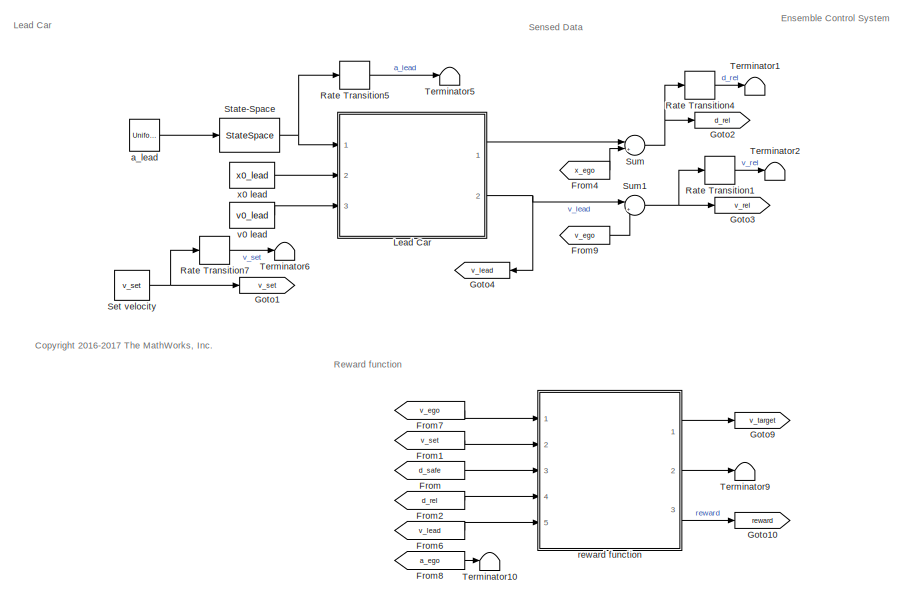
[diagram: root canvas - part 1/2, left side, full height]
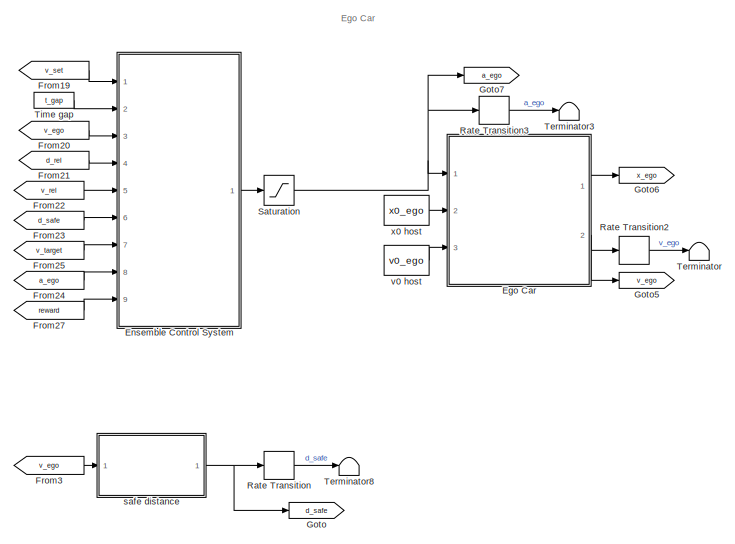
[diagram: root canvas - part 2/2, right side, full height]
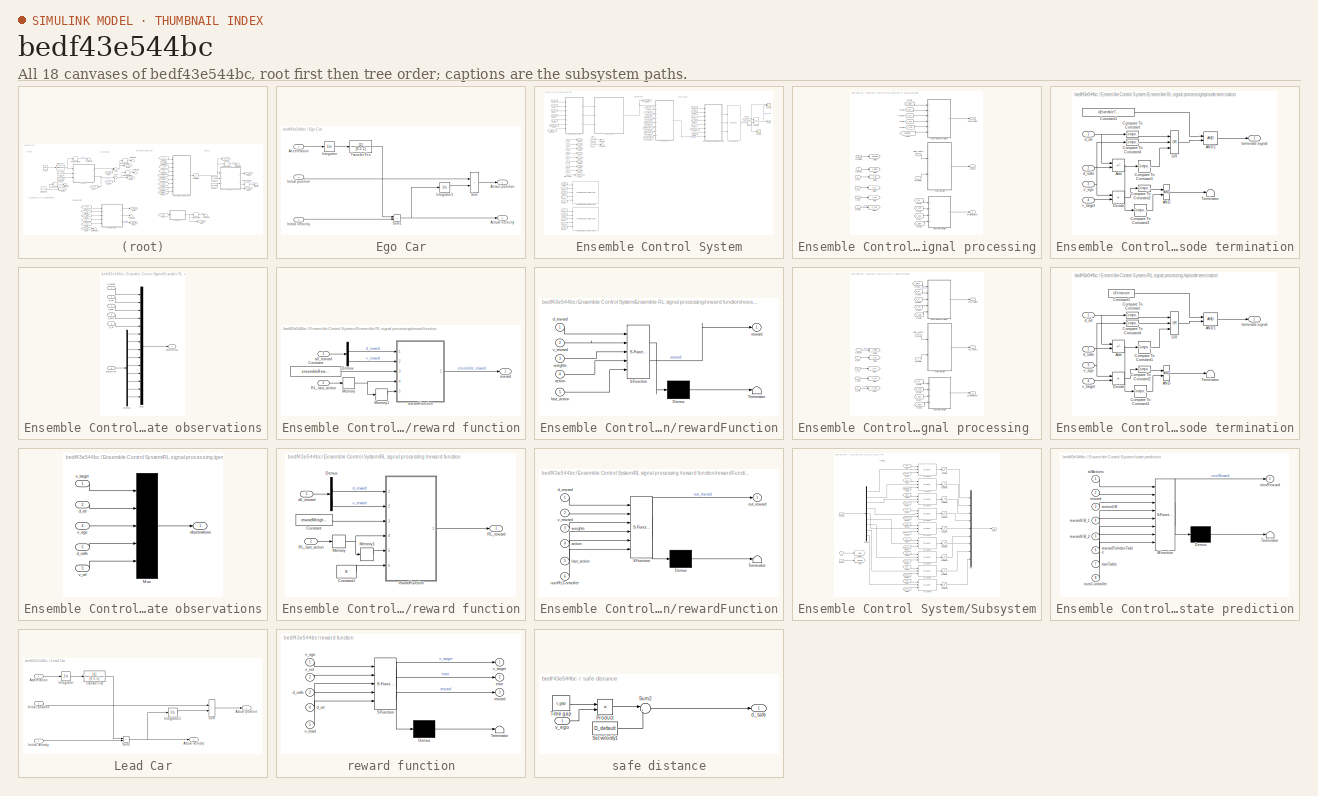
[diagram: thumbnail index - all 18 canvases of the model, root first then tree order]
MODEL slx_bedf43e544bc
KIND model
CONFIG AbsTol = auto
CONFIG EnableMultiTasking = off
CONFIG FixedStep = Ts
CONFIG MaxStep = auto
CONFIG MinStep = auto
CONFIG RelTol = 1e-3
CONFIG SampleTimeConstraint = Unconstrained
CONFIG SolverName = FixedStepAuto
CONFIG StartFcn = a_lead_seed = simCount;\nsimCount = simCount + 1;
CONFIG StartTime = 0.0
CONFIG StopTime = T
BLOCK [SubSystem] Ego Car
  Ports = [3, 2]
  RequestExecContextInheritance = off
BLOCK [Inport] Ego Car/Acceleration
BLOCK [Outport] Ego Car/Actaul position
  VectorParamsAs1DForOutWhenUnconnected = off
BLOCK [Outport] Ego Car/Actual velocity
  Port = 2
  VectorParamsAs1DForOutWhenUnconnected = off
BLOCK [Inport] Ego Car/Initial position
  Port = 2
BLOCK [Inport] Ego Car/Initial velocity
  Port = 3
BLOCK [Integrator] Ego Car/Integrator
  Ports = [1, 1]
BLOCK [Integrator] Ego Car/Integrator1
  Ports = [1, 1]
BLOCK [Sum] Ego Car/Sum
  IconShape = rectangular
  Ports = [2, 1]
BLOCK [Sum] Ego Car/Sum1
  IconShape = rectangular
  Ports = [2, 1]
BLOCK [TransferFcn] Ego Car/Transfer Fcn
  Denominator = [0.5 1]
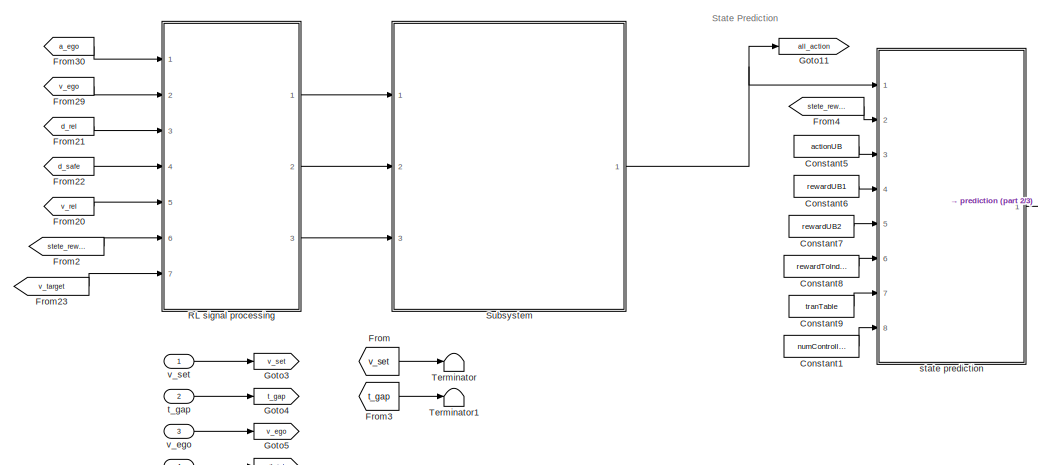
[diagram: Ensemble Control System - part 1/3, top left region]
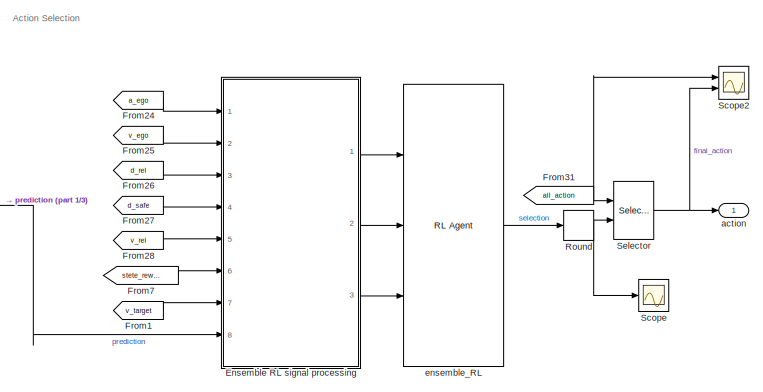
[diagram: Ensemble Control System - part 2/3, top right region]
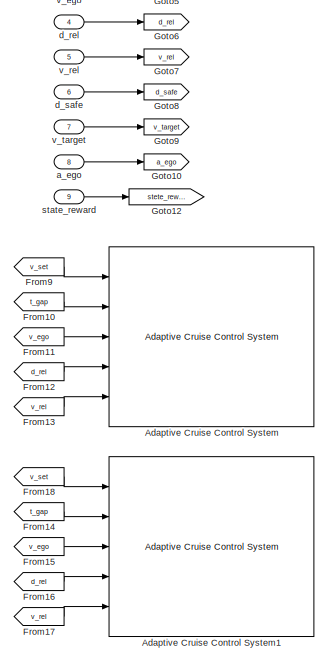
[diagram: Ensemble Control System - part 3/3, bottom left region]
BLOCK [SubSystem] Ensemble Control System
  Ports = [9, 1]
  RequestExecContextInheritance = off
BLOCK [Reference] Ensemble Control System/Adaptive Cruise Control System  REF=mpcadaslib/Adaptive Cruise Control System
  Commented = on
  Ports = [5, 1]
  SourceBlock = mpcadaslib/Adaptive Cruise Control System
  SourceProductBaseCode = MP
  SourceType = Adaptive cruise control (ACC) system
BLOCK [Reference] Ensemble Control System/Adaptive Cruise Control System1  REF=mpcadaslib/Adaptive Cruise Control System
  Commented = on
  Ports = [5, 1]
  SourceBlock = mpcadaslib/Adaptive Cruise Control System
  SourceProductBaseCode = MP
  SourceType = Adaptive cruise control (ACC) system
BLOCK [Constant] Ensemble Control System/Constant1
  Value = numController
BLOCK [Constant] Ensemble Control System/Constant5
  Value = actionUB
BLOCK [Constant] Ensemble Control System/Constant6
  Value = rewardUB1
BLOCK [Constant] Ensemble Control System/Constant7
  Value = rewardUB2
BLOCK [Constant] Ensemble Control System/Constant8
  Value = rewardToIndex
BLOCK [Constant] Ensemble Control System/Constant9
  Value = tranTable
BLOCK [SubSystem] Ensemble Control System/Ensemble RL signal processing
  Ports = [8, 3]
  RequestExecContextInheritance = off
BLOCK [From] Ensemble Control System/Ensemble RL signal processing/From
  GotoTag = v_ego
BLOCK [From] Ensemble Control System/Ensemble RL signal processing/From1
  GotoTag = v_target
BLOCK [From] Ensemble Control System/Ensemble RL signal processing/From10
  GotoTag = v_rel
BLOCK [From] Ensemble Control System/Ensemble RL signal processing/From2
  GotoTag = v_ego
BLOCK [From] Ensemble Control System/Ensemble RL signal processing/From3
  GotoTag = d_rel
BLOCK [From] Ensemble Control System/Ensemble RL signal processing/From4
  GotoTag = v_target
BLOCK [From] Ensemble Control System/Ensemble RL signal processing/From5
  GotoTag = d_rel
BLOCK [From] Ensemble Control System/Ensemble RL signal processing/From6
  GotoTag = d_safe
BLOCK [From] Ensemble Control System/Ensemble RL signal processing/From7
  GotoTag = prediction
BLOCK [From] Ensemble Control System/Ensemble RL signal processing/From8
  GotoTag = d_safe
BLOCK [Goto] Ensemble Control System/Ensemble RL signal processing/Goto
  GotoTag = v_ego
BLOCK [Goto] Ensemble Control System/Ensemble RL signal processing/Goto1
  GotoTag = d_rel
BLOCK [Goto] Ensemble Control System/Ensemble RL signal processing/Goto2
  GotoTag = d_safe
BLOCK [Goto] Ensemble Control System/Ensemble RL signal processing/Goto3
  GotoTag = v_rel
BLOCK [Goto] Ensemble Control System/Ensemble RL signal processing/Goto4
  GotoTag = v_target
BLOCK [Goto] Ensemble Control System/Ensemble RL signal processing/Goto5
  GotoTag = prediction
BLOCK [Inport] Ensemble Control System/Ensemble RL signal processing/d_rel
  Port = 3
BLOCK [Inport] Ensemble Control System/Ensemble RL signal processing/d_safe
  Port = 4
BLOCK [SubSystem] Ensemble Control System/Ensemble RL signal processing/episode termination
  Ports = [4, 1]
  RequestExecContextInheritance = off
BLOCK [Logic] Ensemble Control System/Ensemble RL signal processing/episode termination/AND
  AllPortsSameDT = off
  IconShape = distinctive
  OutDataTypeStr = boolean
  Ports = [2, 1]
BLOCK [Logic] Ensemble Control System/Ensemble RL signal processing/episode termination/AND1
  AllPortsSameDT = off
  IconShape = distinctive
  OutDataTypeStr = boolean
  Ports = [2, 1]
BLOCK [Sum] Ensemble Control System/Ensemble RL signal processing/episode termination/Add
  IconShape = rectangular
  Inputs = +-
  Ports = [2, 1]
BLOCK [Reference] Ensemble Control System/Ensemble RL signal processing/episode termination/Compare To Constant  REF=simulink/Logic and Bit
Operations/Compare
To Constant
  Ports = [1, 1]
  SourceBlock = simulink/Logic and Bit\nOperations/Compare\nTo Constant
  SourceProductBaseCode = SL
  SourceType = Compare To Constant
BLOCK [Reference] Ensemble Control System/Ensemble RL signal processing/episode termination/Compare To Constant1  REF=simulink/Logic and Bit
Operations/Compare
To Constant
  Ports = [1, 1]
  SourceBlock = simulink/Logic and Bit\nOperations/Compare\nTo Constant
  SourceProductBaseCode = SL
  SourceType = Compare To Constant
BLOCK [Reference] Ensemble Control System/Ensemble RL signal processing/episode termination/Compare To Constant2  REF=simulink/Logic and Bit
Operations/Compare
To Constant
  Ports = [1, 1]
  SourceBlock = simulink/Logic and Bit\nOperations/Compare\nTo Constant
  SourceProductBaseCode = SL
  SourceType = Compare To Constant
BLOCK [Reference] Ensemble Control System/Ensemble RL signal processing/episode termination/Compare To Constant3  REF=simulink/Logic and Bit
Operations/Compare
To Constant
  Ports = [1, 1]
  SourceBlock = simulink/Logic and Bit\nOperations/Compare\nTo Constant
  SourceProductBaseCode = SL
  SourceType = Compare To Constant
BLOCK [Reference] Ensemble Control System/Ensemble RL signal processing/episode termination/Compare To Constant4  REF=simulink/Logic and Bit
Operations/Compare
To Constant
  Ports = [1, 1]
  SourceBlock = simulink/Logic and Bit\nOperations/Compare\nTo Constant
  SourceProductBaseCode = SL
  SourceType = Compare To Constant
BLOCK [Constant] Ensemble Control System/Ensemble RL signal processing/episode termination/Constant1
  Value = isEnsembleTerminate
BLOCK [Product] Ensemble Control System/Ensemble RL signal processing/episode termination/Divide
  Inputs = */
  Ports = [2, 1]
BLOCK [Logic] Ensemble Control System/Ensemble RL signal processing/episode termination/OR
  AllPortsSameDT = off
  IconShape = distinctive
  Inputs = 3
  Operator = OR
  OutDataTypeStr = boolean
  Ports = [3, 1]
BLOCK [Terminator] Ensemble Control System/Ensemble RL signal processing/episode termination/Terminator
BLOCK [Inport] Ensemble Control System/Ensemble RL signal processing/episode termination/d_rel
BLOCK [Inport] Ensemble Control System/Ensemble RL signal processing/episode termination/d_safe
  Port = 2
BLOCK [Outport] Ensemble Control System/Ensemble RL signal processing/episode termination/terminate signal
BLOCK [Inport] Ensemble Control System/Ensemble RL signal processing/episode termination/v_ego
  Port = 3
BLOCK [Inport] Ensemble Control System/Ensemble RL signal processing/episode termination/v_target
  Port = 4
BLOCK [SubSystem] Ensemble Control System/Ensemble RL signal processing/generate observations
  Ports = [6, 1]
  RequestExecContextInheritance = off
BLOCK [Demux] Ensemble Control System/Ensemble RL signal processing/generate observations/Demux
  Outputs = 9
  Ports = [1, 9]
BLOCK [Mux] Ensemble Control System/Ensemble RL signal processing/generate observations/Mux
  DisplayOption = bar
  Inputs = 14
  Ports = [14, 1]
BLOCK [Inport] Ensemble Control System/Ensemble RL signal processing/generate observations/d_rel
  Port = 2
BLOCK [Inport] Ensemble Control System/Ensemble RL signal processing/generate observations/d_safe
  Port = 5
BLOCK [Outport] Ensemble Control System/Ensemble RL signal processing/generate observations/observations
BLOCK [Inport] Ensemble Control System/Ensemble RL signal processing/generate observations/prediction
  Port = 6
BLOCK [Inport] Ensemble Control System/Ensemble RL signal processing/generate observations/v_ego
  Port = 4
BLOCK [Inport] Ensemble Control System/Ensemble RL signal processing/generate observations/v_rel
  Port = 3
BLOCK [Inport] Ensemble Control System/Ensemble RL signal processing/generate observations/v_target
BLOCK [Inport] Ensemble Control System/Ensemble RL signal processing/last_action
BLOCK [Outport] Ensemble Control System/Ensemble RL signal processing/observations
BLOCK [Inport] Ensemble Control System/Ensemble RL signal processing/prediction
  Port = 8
BLOCK [Outport] Ensemble Control System/Ensemble RL signal processing/reward
  Port = 2
BLOCK [SubSystem] Ensemble Control System/Ensemble RL signal processing/reward function
  Ports = [2, 1]
  RequestExecContextInheritance = off
BLOCK [Constant] Ensemble Control System/Ensemble RL signal processing/reward function/Constant
  Value = ensembleRewardWeights
BLOCK [Demux] Ensemble Control System/Ensemble RL signal processing/reward function/Demux
  Outputs = 2
  Ports = [1, 2]
BLOCK [Memory] Ensemble Control System/Ensemble RL signal processing/reward function/Memory
BLOCK [Memory] Ensemble Control System/Ensemble RL signal processing/reward function/Memory1
BLOCK [Inport] Ensemble Control System/Ensemble RL signal processing/reward function/RL_last_action
  Port = 2
BLOCK [Inport] Ensemble Control System/Ensemble RL signal processing/reward function/all_reward
BLOCK [Outport] Ensemble Control System/Ensemble RL signal processing/reward function/reward
BLOCK [SubSystem] Ensemble Control System/Ensemble RL signal processing/reward function/rewardFunction
  ErrorFcn = Stateflow.Translate.translate
  PermitHierarchicalResolution = ExplicitOnly
  Ports = [5, 1]
  RequestExecContextInheritance = off
  SFBlockType = MATLAB Function
  TreatAsAtomicUnit = on
BLOCK [Demux] Ensemble Control System/Ensemble RL signal processing/reward function/rewardFunction/ Demux 
  Outputs = 1
  Ports = [1, 1]
BLOCK [S-Function] Ensemble Control System/Ensemble RL signal processing/reward function/rewardFunction/ SFunction 
  EnableBusSupport = on
  FunctionName = sf_sfun
  PortCounts = [5 2]
  Ports = [5, 2]
  SFcnIsStateOwnerBlock = off
  SFunctionDeploymentMode = off
  Tag = Stateflow S-Function 1
BLOCK [Terminator] Ensemble Control System/Ensemble RL signal processing/reward function/rewardFunction/ Terminator 
BLOCK [Inport] Ensemble Control System/Ensemble RL signal processing/reward function/rewardFunction/action
  Port = 4
BLOCK [Inport] Ensemble Control System/Ensemble RL signal processing/reward function/rewardFunction/d_reward
BLOCK [Inport] Ensemble Control System/Ensemble RL signal processing/reward function/rewardFunction/last_action
  Port = 5
BLOCK [Outport] Ensemble Control System/Ensemble RL signal processing/reward function/rewardFunction/reward
BLOCK [Inport] Ensemble Control System/Ensemble RL signal processing/reward function/rewardFunction/v_reward
  Port = 2
BLOCK [Inport] Ensemble Control System/Ensemble RL signal processing/reward function/rewardFunction/weights
  Port = 3
BLOCK [Inport] Ensemble Control System/Ensemble RL signal processing/state_reward
  Port = 6
BLOCK [Outport] Ensemble Control System/Ensemble RL signal processing/terminate signal
  Port = 3
BLOCK [Inport] Ensemble Control System/Ensemble RL signal processing/v_ego
  Port = 2
BLOCK [Inport] Ensemble Control System/Ensemble RL signal processing/v_rel
  Port = 5
BLOCK [Inport] Ensemble Control System/Ensemble RL signal processing/v_target
  Port = 7
BLOCK [From] Ensemble Control System/From
  GotoTag = v_set
BLOCK [From] Ensemble Control System/From1
  GotoTag = v_target
BLOCK [From] Ensemble Control System/From10
  Commented = on
  GotoTag = t_gap
BLOCK [From] Ensemble Control System/From11
  Commented = on
  GotoTag = v_ego
BLOCK [From] Ensemble Control System/From12
  Commented = on
  GotoTag = d_rel
BLOCK [From] Ensemble Control System/From13
  Commented = on
  GotoTag = v_rel
BLOCK [From] Ensemble Control System/From14
  Commented = on
  GotoTag = t_gap
BLOCK [From] Ensemble Control System/From15
  Commented = on
  GotoTag = v_ego
BLOCK [From] Ensemble Control System/From16
  Commented = on
  GotoTag = d_rel
BLOCK [From] Ensemble Control System/From17
  Commented = on
  GotoTag = v_rel
BLOCK [From] Ensemble Control System/From18
  Commented = on
  GotoTag = v_set
BLOCK [From] Ensemble Control System/From2
  GotoTag = stete_reward
BLOCK [From] Ensemble Control System/From20
  GotoTag = v_rel
BLOCK [From] Ensemble Control System/From21
  GotoTag = d_rel
BLOCK [From] Ensemble Control System/From22
  GotoTag = d_safe
BLOCK [From] Ensemble Control System/From23
  GotoTag = v_target
BLOCK [From] Ensemble Control System/From24
  GotoTag = a_ego
BLOCK [From] Ensemble Control System/From25
  GotoTag = v_ego
BLOCK [From] Ensemble Control System/From26
  GotoTag = d_rel
BLOCK [From] Ensemble Control System/From27
  GotoTag = d_safe
BLOCK [From] Ensemble Control System/From28
  GotoTag = v_rel
BLOCK [From] Ensemble Control System/From29
  GotoTag = v_ego
BLOCK [From] Ensemble Control System/From3
  GotoTag = t_gap
BLOCK [From] Ensemble Control System/From30
  GotoTag = a_ego
BLOCK [From] Ensemble Control System/From31
  GotoTag = all_action
BLOCK [From] Ensemble Control System/From4
  GotoTag = stete_reward
BLOCK [From] Ensemble Control System/From7
  GotoTag = stete_reward
BLOCK [From] Ensemble Control System/From9
  Commented = on
  GotoTag = v_set
BLOCK [Goto] Ensemble Control System/Goto10
  GotoTag = a_ego
BLOCK [Goto] Ensemble Control System/Goto11
  GotoTag = all_action
BLOCK [Goto] Ensemble Control System/Goto12
  GotoTag = stete_reward
BLOCK [Goto] Ensemble Control System/Goto3
  GotoTag = v_set
BLOCK [Goto] Ensemble Control System/Goto4
  GotoTag = t_gap
BLOCK [Goto] Ensemble Control System/Goto5
  GotoTag = v_ego
BLOCK [Goto] Ensemble Control System/Goto6
  GotoTag = d_rel
BLOCK [Goto] Ensemble Control System/Goto7
  GotoTag = v_rel
BLOCK [Goto] Ensemble Control System/Goto8
  GotoTag = d_safe
BLOCK [Goto] Ensemble Control System/Goto9
  GotoTag = v_target
BLOCK [SubSystem] Ensemble Control System/RL signal processing 
  Ports = [7, 3]
  RequestExecContextInheritance = off
BLOCK [From] Ensemble Control System/RL signal processing /From
  GotoTag = v_ego
BLOCK [From] Ensemble Control System/RL signal processing /From1
  GotoTag = v_target
BLOCK [From] Ensemble Control System/RL signal processing /From10
  GotoTag = v_rel
BLOCK [From] Ensemble Control System/RL signal processing /From2
  GotoTag = v_ego
BLOCK [From] Ensemble Control System/RL signal processing /From3
  GotoTag = d_rel
BLOCK [From] Ensemble Control System/RL signal processing /From4
  GotoTag = v_target
BLOCK [From] Ensemble Control System/RL signal processing /From5
  GotoTag = d_rel
BLOCK [From] Ensemble Control System/RL signal processing /From6
  GotoTag = d_safe
BLOCK [From] Ensemble Control System/RL signal processing /From8
  GotoTag = d_safe
BLOCK [Goto] Ensemble Control System/RL signal processing /Goto
  GotoTag = v_ego
BLOCK [Goto] Ensemble Control System/RL signal processing /Goto1
  GotoTag = d_rel
BLOCK [Goto] Ensemble Control System/RL signal processing /Goto2
  GotoTag = d_safe
BLOCK [Goto] Ensemble Control System/RL signal processing /Goto3
  GotoTag = v_rel
BLOCK [Goto] Ensemble Control System/RL signal processing /Goto4
  GotoTag = v_target
BLOCK [Outport] Ensemble Control System/RL signal processing /RL_reward
  Port = 2
BLOCK [Inport] Ensemble Control System/RL signal processing /d_rel
  Port = 3
BLOCK [Inport] Ensemble Control System/RL signal processing /d_safe
  Port = 4
BLOCK [SubSystem] Ensemble Control System/RL signal processing /episode termination
  Ports = [4, 1]
  RequestExecContextInheritance = off
BLOCK [Logic] Ensemble Control System/RL signal processing /episode termination/AND
  AllPortsSameDT = off
  IconShape = distinctive
  OutDataTypeStr = boolean
  Ports = [2, 1]
BLOCK [Logic] Ensemble Control System/RL signal processing /episode termination/AND1
  AllPortsSameDT = off
  IconShape = distinctive
  OutDataTypeStr = boolean
  Ports = [2, 1]
BLOCK [Sum] Ensemble Control System/RL signal processing /episode termination/Add
  IconShape = rectangular
  Inputs = +-
  Ports = [2, 1]
BLOCK [Reference] Ensemble Control System/RL signal processing /episode termination/Compare To Constant  REF=simulink/Logic and Bit
Operations/Compare
To Constant
  Ports = [1, 1]
  SourceBlock = simulink/Logic and Bit\nOperations/Compare\nTo Constant
  SourceProductBaseCode = SL
  SourceType = Compare To Constant
BLOCK [Reference] Ensemble Control System/RL signal processing /episode termination/Compare To Constant1  REF=simulink/Logic and Bit
Operations/Compare
To Constant
  Ports = [1, 1]
  SourceBlock = simulink/Logic and Bit\nOperations/Compare\nTo Constant
  SourceProductBaseCode = SL
  SourceType = Compare To Constant
BLOCK [Reference] Ensemble Control System/RL signal processing /episode termination/Compare To Constant2  REF=simulink/Logic and Bit
Operations/Compare
To Constant
  Ports = [1, 1]
  SourceBlock = simulink/Logic and Bit\nOperations/Compare\nTo Constant
  SourceProductBaseCode = SL
  SourceType = Compare To Constant
BLOCK [Reference] Ensemble Control System/RL signal processing /episode termination/Compare To Constant3  REF=simulink/Logic and Bit
Operations/Compare
To Constant
  Ports = [1, 1]
  SourceBlock = simulink/Logic and Bit\nOperations/Compare\nTo Constant
  SourceProductBaseCode = SL
  SourceType = Compare To Constant
BLOCK [Reference] Ensemble Control System/RL signal processing /episode termination/Compare To Constant4  REF=simulink/Logic and Bit
Operations/Compare
To Constant
  Ports = [1, 1]
  SourceBlock = simulink/Logic and Bit\nOperations/Compare\nTo Constant
  SourceProductBaseCode = SL
  SourceType = Compare To Constant
BLOCK [Constant] Ensemble Control System/RL signal processing /episode termination/Constant1
  Value = isTerminate
BLOCK [Product] Ensemble Control System/RL signal processing /episode termination/Divide
  Inputs = */
  Ports = [2, 1]
BLOCK [Logic] Ensemble Control System/RL signal processing /episode termination/OR
  AllPortsSameDT = off
  IconShape = distinctive
  Inputs = 3
  Operator = OR
  OutDataTypeStr = boolean
  Ports = [3, 1]
BLOCK [Terminator] Ensemble Control System/RL signal processing /episode termination/Terminator
BLOCK [Inport] Ensemble Control System/RL signal processing /episode termination/d_rel
BLOCK [Inport] Ensemble Control System/RL signal processing /episode termination/d_safe
  Port = 2
BLOCK [Outport] Ensemble Control System/RL signal processing /episode termination/terminate signal
BLOCK [Inport] Ensemble Control System/RL signal processing /episode termination/v_ego
  Port = 3
BLOCK [Inport] Ensemble Control System/RL signal processing /episode termination/v_target
  Port = 4
BLOCK [SubSystem] Ensemble Control System/RL signal processing /generate observations
  Ports = [5, 1]
  RequestExecContextInheritance = off
BLOCK [Mux] Ensemble Control System/RL signal processing /generate observations/Mux
  DisplayOption = bar
  Inputs = 5
  Ports = [5, 1]
BLOCK [Inport] Ensemble Control System/RL signal processing /generate observations/d_rel
  Port = 2
BLOCK [Inport] Ensemble Control System/RL signal processing /generate observations/d_safe
  Port = 5
BLOCK [Outport] Ensemble Control System/RL signal processing /generate observations/observations
BLOCK [Inport] Ensemble Control System/RL signal processing /generate observations/v_ego
  Port = 4
BLOCK [Inport] Ensemble Control System/RL signal processing /generate observations/v_rel
  Port = 3
BLOCK [Inport] Ensemble Control System/RL signal processing /generate observations/v_target
BLOCK [Inport] Ensemble Control System/RL signal processing /last_action
BLOCK [Outport] Ensemble Control System/RL signal processing /observations
BLOCK [SubSystem] Ensemble Control System/RL signal processing /reward function
  Ports = [2, 1]
  RequestExecContextInheritance = off
BLOCK [Constant] Ensemble Control System/RL signal processing /reward function/Constant
  Value = rewardWeights
BLOCK [Constant] Ensemble Control System/RL signal processing /reward function/Constant1
  Value = 9
BLOCK [Demux] Ensemble Control System/RL signal processing /reward function/Demux
  Outputs = 2
  Ports = [1, 2]
BLOCK [Memory] Ensemble Control System/RL signal processing /reward function/Memory
BLOCK [Memory] Ensemble Control System/RL signal processing /reward function/Memory1
BLOCK [Inport] Ensemble Control System/RL signal processing /reward function/RL_last_action
  Port = 2
BLOCK [Outport] Ensemble Control System/RL signal processing /reward function/RL_reward
BLOCK [Inport] Ensemble Control System/RL signal processing /reward function/all_reward
BLOCK [SubSystem] Ensemble Control System/RL signal processing /reward function/rewardFunction
  ErrorFcn = Stateflow.Translate.translate
  PermitHierarchicalResolution = ExplicitOnly
  Ports = [6, 1]
  RequestExecContextInheritance = off
  SFBlockType = MATLAB Function
  TreatAsAtomicUnit = on
BLOCK [Demux] Ensemble Control System/RL signal processing /reward function/rewardFunction/ Demux 
  Outputs = 1
  Ports = [1, 1]
BLOCK [S-Function] Ensemble Control System/RL signal processing /reward function/rewardFunction/ SFunction 
  EnableBusSupport = on
  FunctionName = sf_sfun
  PortCounts = [6 2]
  Ports = [6, 2]
  SFcnIsStateOwnerBlock = off
  SFunctionDeploymentMode = off
  Tag = Stateflow S-Function 5
BLOCK [Terminator] Ensemble Control System/RL signal processing /reward function/rewardFunction/ Terminator 
BLOCK [Inport] Ensemble Control System/RL signal processing /reward function/rewardFunction/action
  Port = 4
BLOCK [Inport] Ensemble Control System/RL signal processing /reward function/rewardFunction/d_reward
BLOCK [Inport] Ensemble Control System/RL signal processing /reward function/rewardFunction/last_action
  Port = 5
BLOCK [Inport] Ensemble Control System/RL signal processing /reward function/rewardFunction/numRLController
  Port = 6
BLOCK [Outport] Ensemble Control System/RL signal processing /reward function/rewardFunction/out_reward
BLOCK [Inport] Ensemble Control System/RL signal processing /reward function/rewardFunction/v_reward
  Port = 2
BLOCK [Inport] Ensemble Control System/RL signal processing /reward function/rewardFunction/weights
  Port = 3
BLOCK [Inport] Ensemble Control System/RL signal processing /state_reward
  Port = 6
BLOCK [Outport] Ensemble Control System/RL signal processing /terminate signal
  Port = 3
BLOCK [Inport] Ensemble Control System/RL signal processing /v_ego
  Port = 2
BLOCK [Inport] Ensemble Control System/RL signal processing /v_rel
  Port = 5
BLOCK [Inport] Ensemble Control System/RL signal processing /v_target
  Port = 7
BLOCK [Rounding] Ensemble Control System/Round
  Operator = round
BLOCK [Scope] Ensemble Control System/Scope
  Floating = off
  NumInputPorts = 1
  Ports = [1]
  ScopeSpecificationString = Simulink.scopes.TimeScopeBlockCfg('CurrentConfiguration', extmgr.ConfigurationSet(extmgr.Configuration('Core','General UI',true),extmgr.Configuration('Core','Source UI',true),extmgr.Configuration('Sources','WiredSimulink',true),extmgr.Configuration('Visuals','Time Domain',true,'SerializedDisplays',{struct('MinYLimReal','4.00000','MaxYLimReal','6.00000','YLabelReal','','MinYLimMag','4.00000','MaxYL...<+1352ch>
BLOCK [Scope] Ensemble Control System/Scope2
  Floating = off
  NumInputPorts = 2
  Ports = [2]
  ScopeSpecificationString = Simulink.scopes.TimeScopeBlockCfg('CurrentConfiguration', extmgr.ConfigurationSet(extmgr.Configuration('Core','General UI',true),extmgr.Configuration('Core','Source UI',true),extmgr.Configuration('Sources','WiredSimulink',true,'DataLoggingVariableName','ScopeData1'),extmgr.Configuration('Visuals','Time Domain',true,'SerializedDisplays',{struct('MinYLimReal','-3.625','MaxYLimReal','2.625','YLabelRe...<+2128ch>
BLOCK [Selector] Ensemble Control System/Selector
  IndexOptions = Index vector (port)
  Indices = [1 3]
  OutputSizes = 1
  Ports = [2, 1]
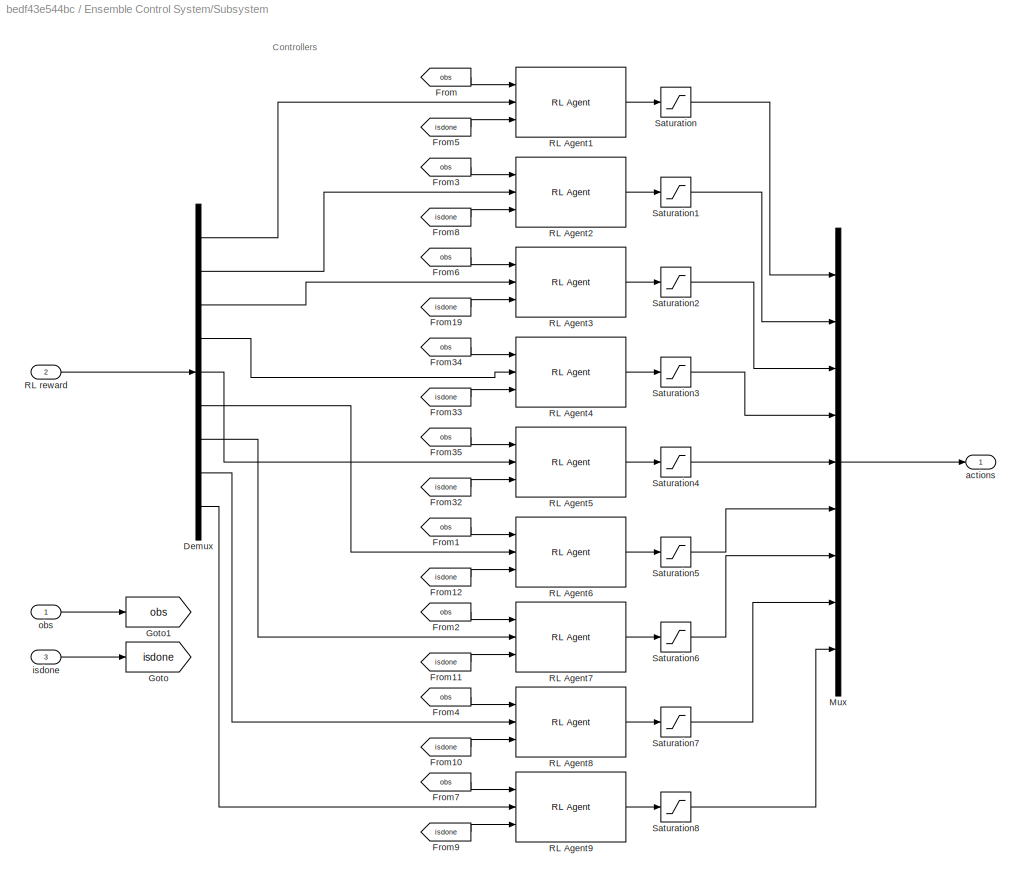
BLOCK [SubSystem] Ensemble Control System/Subsystem
  Ports = [3, 1]
  RequestExecContextInheritance = off
BLOCK [Demux] Ensemble Control System/Subsystem/Demux
  Outputs = 9
  Ports = [1, 9]
BLOCK [From] Ensemble Control System/Subsystem/From
  GotoTag = obs
BLOCK [From] Ensemble Control System/Subsystem/From1
  GotoTag = obs
BLOCK [From] Ensemble Control System/Subsystem/From10
  GotoTag = isdone
BLOCK [From] Ensemble Control System/Subsystem/From11
  GotoTag = isdone
BLOCK [From] Ensemble Control System/Subsystem/From12
  GotoTag = isdone
BLOCK [From] Ensemble Control System/Subsystem/From19
  GotoTag = isdone
BLOCK [From] Ensemble Control System/Subsystem/From2
  GotoTag = obs
BLOCK [From] Ensemble Control System/Subsystem/From3
  GotoTag = obs
BLOCK [From] Ensemble Control System/Subsystem/From32
  GotoTag = isdone
BLOCK [From] Ensemble Control System/Subsystem/From33
  GotoTag = isdone
BLOCK [From] Ensemble Control System/Subsystem/From34
  GotoTag = obs
BLOCK [From] Ensemble Control System/Subsystem/From35
  GotoTag = obs
BLOCK [From] Ensemble Control System/Subsystem/From4
  GotoTag = obs
BLOCK [From] Ensemble Control System/Subsystem/From5
  GotoTag = isdone
BLOCK [From] Ensemble Control System/Subsystem/From6
  GotoTag = obs
BLOCK [From] Ensemble Control System/Subsystem/From7
  GotoTag = obs
BLOCK [From] Ensemble Control System/Subsystem/From8
  GotoTag = isdone
BLOCK [From] Ensemble Control System/Subsystem/From9
  GotoTag = isdone
BLOCK [Goto] Ensemble Control System/Subsystem/Goto
  GotoTag = isdone
BLOCK [Goto] Ensemble Control System/Subsystem/Goto1
  GotoTag = obs
BLOCK [Mux] Ensemble Control System/Subsystem/Mux
  DisplayOption = bar
  Inputs = 9
  Ports = [9, 1]
BLOCK [Reference] Ensemble Control System/Subsystem/RL Agent1  REF=rllib/RL Agent
  Ports = [3, 1]
  SourceBlock = rllib/RL Agent
  SourceProductBaseCode = RL
  SourceType = RL Agent
BLOCK [Reference] Ensemble Control System/Subsystem/RL Agent2  REF=rllib/RL Agent
  Ports = [3, 1]
  SourceBlock = rllib/RL Agent
  SourceProductBaseCode = RL
  SourceType = RL Agent
BLOCK [Reference] Ensemble Control System/Subsystem/RL Agent3  REF=rllib/RL Agent
  Ports = [3, 1]
  SourceBlock = rllib/RL Agent
  SourceProductBaseCode = RL
  SourceType = RL Agent
BLOCK [Reference] Ensemble Control System/Subsystem/RL Agent4  REF=rllib/RL Agent
  Ports = [3, 1]
  SourceBlock = rllib/RL Agent
  SourceProductBaseCode = RL
  SourceType = RL Agent
BLOCK [Reference] Ensemble Control System/Subsystem/RL Agent5  REF=rllib/RL Agent
  Ports = [3, 1]
  SourceBlock = rllib/RL Agent
  SourceProductBaseCode = RL
  SourceType = RL Agent
BLOCK [Reference] Ensemble Control System/Subsystem/RL Agent6  REF=rllib/RL Agent
  Ports = [3, 1]
  SourceBlock = rllib/RL Agent
  SourceProductBaseCode = RL
  SourceType = RL Agent
BLOCK [Reference] Ensemble Control System/Subsystem/RL Agent7  REF=rllib/RL Agent
  Ports = [3, 1]
  SourceBlock = rllib/RL Agent
  SourceProductBaseCode = RL
  SourceType = RL Agent
BLOCK [Reference] Ensemble Control System/Subsystem/RL Agent8  REF=rllib/RL Agent
  Ports = [3, 1]
  SourceBlock = rllib/RL Agent
  SourceProductBaseCode = RL
  SourceType = RL Agent
BLOCK [Reference] Ensemble Control System/Subsystem/RL Agent9  REF=rllib/RL Agent
  Ports = [3, 1]
  SourceBlock = rllib/RL Agent
  SourceProductBaseCode = RL
  SourceType = RL Agent
BLOCK [Inport] Ensemble Control System/Subsystem/RL reward
  Port = 2
BLOCK [Saturate] Ensemble Control System/Subsystem/Saturation
  LowerLimit = amin_ego
  UpperLimit = amax_ego
BLOCK [Saturate] Ensemble Control System/Subsystem/Saturation1
  LowerLimit = amin_ego
  UpperLimit = amax_ego
BLOCK [Saturate] Ensemble Control System/Subsystem/Saturation2
  LowerLimit = amin_ego
  UpperLimit = amax_ego
BLOCK [Saturate] Ensemble Control System/Subsystem/Saturation3
  LowerLimit = amin_ego
  UpperLimit = amax_ego
BLOCK [Saturate] Ensemble Control System/Subsystem/Saturation4
  LowerLimit = amin_ego
  UpperLimit = amax_ego
BLOCK [Saturate] Ensemble Control System/Subsystem/Saturation5
  LowerLimit = amin_ego
  UpperLimit = amax_ego
BLOCK [Saturate] Ensemble Control System/Subsystem/Saturation6
  LowerLimit = amin_ego
  UpperLimit = amax_ego
BLOCK [Saturate] Ensemble Control System/Subsystem/Saturation7
  LowerLimit = amin_ego
  UpperLimit = amax_ego
BLOCK [Saturate] Ensemble Control System/Subsystem/Saturation8
  LowerLimit = amin_ego
  UpperLimit = amax_ego
BLOCK [Outport] Ensemble Control System/Subsystem/actions
BLOCK [Inport] Ensemble Control System/Subsystem/isdone
  Port = 3
BLOCK [Inport] Ensemble Control System/Subsystem/obs
BLOCK [Terminator] Ensemble Control System/Terminator
BLOCK [Terminator] Ensemble Control System/Terminator1
BLOCK [Inport] Ensemble Control System/a_ego
  Port = 8
BLOCK [Outport] Ensemble Control System/action
BLOCK [Inport] Ensemble Control System/d_rel
  Port = 4
BLOCK [Inport] Ensemble Control System/d_safe
  Port = 6
BLOCK [Reference] Ensemble Control System/ensemble_RL  REF=rllib/RL Agent
  Ports = [3, 1]
  SourceBlock = rllib/RL Agent
  SourceProductBaseCode = RL
  SourceType = RL Agent
BLOCK [SubSystem] Ensemble Control System/state prediction
  ErrorFcn = Stateflow.Translate.translate
  PermitHierarchicalResolution = ExplicitOnly
  Ports = [8, 1]
  RequestExecContextInheritance = off
  SFBlockType = MATLAB Function
  TreatAsAtomicUnit = on
BLOCK [Demux] Ensemble Control System/state prediction/ Demux 
  Outputs = 1
  Ports = [1, 1]
BLOCK [S-Function] Ensemble Control System/state prediction/ SFunction 
  EnableBusSupport = on
  FunctionName = sf_sfun
  PortCounts = [8 2]
  Ports = [8, 2]
  SFcnIsStateOwnerBlock = off
  SFunctionDeploymentMode = off
  Tag = Stateflow S-Function 4
BLOCK [Terminator] Ensemble Control System/state prediction/ Terminator 
BLOCK [Inport] Ensemble Control System/state prediction/actionUB
  Port = 3
BLOCK [Inport] Ensemble Control System/state prediction/allActions
BLOCK [Outport] Ensemble Control System/state prediction/nextReward
BLOCK [Inport] Ensemble Control System/state prediction/numController
  Port = 8
BLOCK [Inport] Ensemble Control System/state prediction/reward
  Port = 2
BLOCK [Inport] Ensemble Control System/state prediction/rewardToIndexTable
  Port = 6
BLOCK [Inport] Ensemble Control System/state prediction/rewardUB_1
  Port = 4
BLOCK [Inport] Ensemble Control System/state prediction/rewardUB_2
  Port = 5
BLOCK [Inport] Ensemble Control System/state prediction/tranTable
  Port = 7
BLOCK [Inport] Ensemble Control System/state_reward
  Port = 9
BLOCK [Inport] Ensemble Control System/t_gap
  Port = 2
BLOCK [Inport] Ensemble Control System/v_ego
  Port = 3
BLOCK [Inport] Ensemble Control System/v_rel
  Port = 5
BLOCK [Inport] Ensemble Control System/v_set
BLOCK [Inport] Ensemble Control System/v_target
  Port = 7
BLOCK [From] From
  GotoTag = d_safe
BLOCK [From] From1
  GotoTag = v_set
BLOCK [From] From19
  GotoTag = v_set
BLOCK [From] From2
  GotoTag = d_rel
BLOCK [From] From20
  GotoTag = v_ego
BLOCK [From] From21
  GotoTag = d_rel
BLOCK [From] From22
  GotoTag = v_rel
BLOCK [From] From23
  GotoTag = d_safe
BLOCK [From] From24
  GotoTag = a_ego
BLOCK [From] From25
  GotoTag = v_target
BLOCK [From] From27
  GotoTag = reward
BLOCK [From] From3
  GotoTag = v_ego
BLOCK [From] From4
  GotoTag = x_ego
BLOCK [From] From6
  GotoTag = v_lead
BLOCK [From] From7
  GotoTag = v_ego
BLOCK [From] From8
  GotoTag = a_ego
BLOCK [From] From9
  GotoTag = v_ego
BLOCK [Goto] Goto
  GotoTag = d_safe
BLOCK [Goto] Goto1
  GotoTag = v_set
BLOCK [Goto] Goto10
  GotoTag = reward
BLOCK [Goto] Goto2
  GotoTag = d_rel
BLOCK [Goto] Goto3
  GotoTag = v_rel
BLOCK [Goto] Goto4
  GotoTag = v_lead
BLOCK [Goto] Goto5
  GotoTag = v_ego
BLOCK [Goto] Goto6
  GotoTag = x_ego
BLOCK [Goto] Goto7
  GotoTag = a_ego
BLOCK [Goto] Goto9
  GotoTag = v_target
BLOCK [SubSystem] Lead Car
  Ports = [3, 2]
  RequestExecContextInheritance = off
BLOCK [Inport] Lead Car/Acceleration
BLOCK [Outport] Lead Car/Actual position
  VectorParamsAs1DForOutWhenUnconnected = off
BLOCK [Outport] Lead Car/Actual velocity
  Port = 2
  VectorParamsAs1DForOutWhenUnconnected = off
BLOCK [Inport] Lead Car/Initial position
  Port = 2
BLOCK [Inport] Lead Car/Initial velocity
  Port = 3
BLOCK [Integrator] Lead Car/Integrator
  Ports = [1, 1]
BLOCK [Integrator] Lead Car/Integrator1
  Ports = [1, 1]
BLOCK [Sum] Lead Car/Sum
  IconShape = rectangular
  Ports = [2, 1]
BLOCK [Sum] Lead Car/Sum1
  IconShape = rectangular
  Ports = [2, 1]
BLOCK [TransferFcn] Lead Car/Transfer Fcn
  Denominator = [0.5 1]
BLOCK [RateTransition] Rate Transition
  OutPortSampleTime = Ts_data
BLOCK [RateTransition] Rate Transition1
  OutPortSampleTime = Ts_data
BLOCK [RateTransition] Rate Transition2
  OutPortSampleTime = Ts_data
BLOCK [RateTransition] Rate Transition3
  OutPortSampleTime = Ts_data
BLOCK [RateTransition] Rate Transition4
  OutPortSampleTime = Ts_data
BLOCK [RateTransition] Rate Transition5
  OutPortSampleTime = Ts_data
BLOCK [RateTransition] Rate Transition7
  OutPortSampleTime = Ts_data
BLOCK [Saturate] Saturation
  LowerLimit = amin_ego
  UpperLimit = amax_ego
BLOCK [Constant] Set velocity
  SampleTime = Ts
  Value = v_set
BLOCK [StateSpace] State-Space
  A = -10
  B = 10
  D = 0
  InitialCondition = 0
  NameLocation = top
  Ports = [1, 1]
BLOCK [Sum] Sum
  Inputs = |+-
  Ports = [2, 1]
BLOCK [Sum] Sum1
  Inputs = |+-
  Ports = [2, 1]
BLOCK [Terminator] Terminator
BLOCK [Terminator] Terminator1
BLOCK [Terminator] Terminator10
BLOCK [Terminator] Terminator2
BLOCK [Terminator] Terminator3
BLOCK [Terminator] Terminator5
BLOCK [Terminator] Terminator6
BLOCK [Terminator] Terminator8
BLOCK [Terminator] Terminator9
BLOCK [Constant] Time gap
  SampleTime = Ts
  Value = t_gap
BLOCK [UniformRandomNumber] a_lead
  Maximum = amax_lead
  Minimum = amin_lead
  SampleTime = change_freq
  Seed = a_lead_seed
  VectorParams1D = off
BLOCK [SubSystem] reward function
  ErrorFcn = Stateflow.Translate.translate
  PermitHierarchicalResolution = ExplicitOnly
  Ports = [5, 3]
  RequestExecContextInheritance = off
  SFBlockType = MATLAB Function
  TreatAsAtomicUnit = on
BLOCK [Demux] reward function/ Demux 
  Outputs = 1
  Ports = [1, 1]
BLOCK [S-Function] reward function/ SFunction 
  EnableBusSupport = on
  FunctionName = sf_sfun
  PortCounts = [5 4]
  Ports = [5, 4]
  SFcnIsStateOwnerBlock = off
  SFunctionDeploymentMode = off
  Tag = Stateflow S-Function 2
BLOCK [Terminator] reward function/ Terminator 
BLOCK [Inport] reward function/d_rel
  Port = 4
BLOCK [Inport] reward function/d_safe
  Port = 3
BLOCK [Outport] reward function/error
  Port = 2
BLOCK [Outport] reward function/reward
  Port = 3
BLOCK [Inport] reward function/v_ego
BLOCK [Inport] reward function/v_lead
  Port = 5
BLOCK [Inport] reward function/v_set
  Port = 2
BLOCK [Outport] reward function/v_target
BLOCK [SubSystem] safe distance
  Ports = [1, 1]
  RequestExecContextInheritance = off
BLOCK [Product] safe distance/Product
  Ports = [2, 1]
BLOCK [Constant] safe distance/Set velocity1
  SampleTime = Ts
  Value = D_default
BLOCK [Sum] safe distance/Sum2
  Inputs = |++
  Ports = [2, 1]
BLOCK [Constant] safe distance/Time gap
  SampleTime = Ts
  Value = t_gap
BLOCK [Outport] safe distance/d_safe
BLOCK [Inport] safe distance/v_ego
BLOCK [Constant] v0 host
  SampleTime = Ts
  Value = v0_ego
BLOCK [Constant] v0 lead
  SampleTime = Ts
  Value = v0_lead
BLOCK [Constant] x0 host
  SampleTime = Ts
  Value = x0_ego
BLOCK [Constant] x0 lead
  SampleTime = Ts
  Value = x0_lead
ANNOTATION (root): <copyright redacted>
ANNOTATION (root): Ego Car
ANNOTATION (root): Ensemble Control System
ANNOTATION (root): Lead Car
ANNOTATION (root): Reward function
ANNOTATION (root): Sensed Data
ANNOTATION Ensemble Control System: Action Selection
ANNOTATION Ensemble Control System: State Prediction
ANNOTATION Ensemble Control System/Subsystem: Controllers
LINE Ego Car/Acceleration:1 -> Ego Car/Integrator:1
LINE Ego Car/Initial position:1 -> Ego Car/Sum:1
LINE Ego Car/Initial velocity:1 -> Ego Car/Sum1:2
LINE Ego Car/Integrator1:1 -> Ego Car/Sum:2
LINE Ego Car/Integrator:1 -> Ego Car/Transfer Fcn:1
NET Ego Car/Sum1:1 -> Ego Car/Actual velocity:1, Ego Car/Integrator1:1
LINE Ego Car/Sum:1 -> Ego Car/Actaul position:1
LINE Ego Car/Transfer Fcn:1 -> Ego Car/Sum1:1
LINE Ego Car:1 -> Goto6:1
NET Ego Car:2 -> Goto5:1, Rate Transition2:1
LINE Ensemble Control System/Constant1:1 -> Ensemble Control System/state prediction:8
LINE Ensemble Control System/Constant5:1 -> Ensemble Control System/state prediction:3
LINE Ensemble Control System/Constant6:1 -> Ensemble Control System/state prediction:4
LINE Ensemble Control System/Constant7:1 -> Ensemble Control System/state prediction:5
LINE Ensemble Control System/Constant8:1 -> Ensemble Control System/state prediction:6
LINE Ensemble Control System/Constant9:1 -> Ensemble Control System/state prediction:7
LINE Ensemble Control System/Ensemble RL signal processing/From10:1 -> Ensemble Control System/Ensemble RL signal processing/generate observations:3
LINE Ensemble Control System/Ensemble RL signal processing/From1:1 -> Ensemble Control System/Ensemble RL signal processing/generate observations:1
LINE Ensemble Control System/Ensemble RL signal processing/From2:1 -> Ensemble Control System/Ensemble RL signal processing/generate observations:4
LINE Ensemble Control System/Ensemble RL signal processing/From3:1 -> Ensemble Control System/Ensemble RL signal processing/generate observations:2
LINE Ensemble Control System/Ensemble RL signal processing/From4:1 -> Ensemble Control System/Ensemble RL signal processing/episode termination:4
LINE Ensemble Control System/Ensemble RL signal processing/From5:1 -> Ensemble Control System/Ensemble RL signal processing/episode termination:1
LINE Ensemble Control System/Ensemble RL signal processing/From6:1 -> Ensemble Control System/Ensemble RL signal processing/episode termination:2
LINE Ensemble Control System/Ensemble RL signal processing/From7:1 -> Ensemble Control System/Ensemble RL signal processing/generate observations:6
LINE Ensemble Control System/Ensemble RL signal processing/From8:1 -> Ensemble Control System/Ensemble RL signal processing/generate observations:5
LINE Ensemble Control System/Ensemble RL signal processing/From:1 -> Ensemble Control System/Ensemble RL signal processing/episode termination:3
LINE Ensemble Control System/Ensemble RL signal processing/d_rel:1 -> Ensemble Control System/Ensemble RL signal processing/Goto1:1
LINE Ensemble Control System/Ensemble RL signal processing/d_safe:1 -> Ensemble Control System/Ensemble RL signal processing/Goto2:1
LINE Ensemble Control System/Ensemble RL signal processing/episode termination/AND1:1 -> Ensemble Control System/Ensemble RL signal processing/episode termination/terminate signal:1
LINE Ensemble Control System/Ensemble RL signal processing/episode termination/AND:1 -> Ensemble Control System/Ensemble RL signal processing/episode termination/Terminator:1
NET Ensemble Control System/Ensemble RL signal processing/episode termination/Add:1 -> Ensemble Control System/Ensemble RL signal processing/episode termination/Compare To Constant1:1, Ensemble Control System/Ensemble RL signal processing/episode termination/Compare To Constant3:1
LINE Ensemble Control System/Ensemble RL signal processing/episode termination/Compare To Constant1:1 -> Ensemble Control System/Ensemble RL signal processing/episode termination/OR:3
LINE Ensemble Control System/Ensemble RL signal processing/episode termination/Compare To Constant2:1 -> Ensemble Control System/Ensemble RL signal processing/episode termination/AND:1
LINE Ensemble Control System/Ensemble RL signal processing/episode termination/Compare To Constant3:1 -> Ensemble Control System/Ensemble RL signal processing/episode termination/AND:2
LINE Ensemble Control System/Ensemble RL signal processing/episode termination/Compare To Constant4:1 -> Ensemble Control System/Ensemble RL signal processing/episode termination/OR:2
LINE Ensemble Control System/Ensemble RL signal processing/episode termination/Compare To Constant:1 -> Ensemble Control System/Ensemble RL signal processing/episode termination/OR:1
LINE Ensemble Control System/Ensemble RL signal processing/episode termination/Constant1:1 -> Ensemble Control System/Ensemble RL signal processing/episode termination/AND1:1
LINE Ensemble Control System/Ensemble RL signal processing/episode termination/Divide:1 -> Ensemble Control System/Ensemble RL signal processing/episode termination/Compare To Constant2:1
LINE Ensemble Control System/Ensemble RL signal processing/episode termination/OR:1 -> Ensemble Control System/Ensemble RL signal processing/episode termination/AND1:2
NET Ensemble Control System/Ensemble RL signal processing/episode termination/d_rel:1 -> Ensemble Control System/Ensemble RL signal processing/episode termination/Add:1, Ensemble Control System/Ensemble RL signal processing/episode termination/Compare To Constant:1
LINE Ensemble Control System/Ensemble RL signal processing/episode termination/d_safe:1 -> Ensemble Control System/Ensemble RL signal processing/episode termination/Add:2
NET Ensemble Control System/Ensemble RL signal processing/episode termination/v_ego:1 -> Ensemble Control System/Ensemble RL signal processing/episode termination/Compare To Constant4:1, Ensemble Control System/Ensemble RL signal processing/episode termination/Divide:1
LINE Ensemble Control System/Ensemble RL signal processing/episode termination/v_target:1 -> Ensemble Control System/Ensemble RL signal processing/episode termination/Divide:2
LINE Ensemble Control System/Ensemble RL signal processing/episode termination:1 -> Ensemble Control System/Ensemble RL signal processing/terminate signal:1
LINE Ensemble Control System/Ensemble RL signal processing/generate observations/Demux:1 -> Ensemble Control System/Ensemble RL signal processing/generate observations/Mux:6
LINE Ensemble Control System/Ensemble RL signal processing/generate observations/Demux:2 -> Ensemble Control System/Ensemble RL signal processing/generate observations/Mux:7
LINE Ensemble Control System/Ensemble RL signal processing/generate observations/Demux:3 -> Ensemble Control System/Ensemble RL signal processing/generate observations/Mux:8
LINE Ensemble Control System/Ensemble RL signal processing/generate observations/Demux:4 -> Ensemble Control System/Ensemble RL signal processing/generate observations/Mux:9
LINE Ensemble Control System/Ensemble RL signal processing/generate observations/Demux:5 -> Ensemble Control System/Ensemble RL signal processing/generate observations/Mux:10
LINE Ensemble Control System/Ensemble RL signal processing/generate observations/Demux:6 -> Ensemble Control System/Ensemble RL signal processing/generate observations/Mux:11
LINE Ensemble Control System/Ensemble RL signal processing/generate observations/Demux:7 -> Ensemble Control System/Ensemble RL signal processing/generate observations/Mux:12
LINE Ensemble Control System/Ensemble RL signal processing/generate observations/Demux:8 -> Ensemble Control System/Ensemble RL signal processing/generate observations/Mux:13
LINE Ensemble Control System/Ensemble RL signal processing/generate observations/Demux:9 -> Ensemble Control System/Ensemble RL signal processing/generate observations/Mux:14
LINE Ensemble Control System/Ensemble RL signal processing/generate observations/Mux:1 -> Ensemble Control System/Ensemble RL signal processing/generate observations/observations:1
LINE Ensemble Control System/Ensemble RL signal processing/generate observations/d_rel:1 -> Ensemble Control System/Ensemble RL signal processing/generate observations/Mux:2
LINE Ensemble Control System/Ensemble RL signal processing/generate observations/d_safe:1 -> Ensemble Control System/Ensemble RL signal processing/generate observations/Mux:4
LINE Ensemble Control System/Ensemble RL signal processing/generate observations/prediction:1 -> Ensemble Control System/Ensemble RL signal processing/generate observations/Demux:1
LINE Ensemble Control System/Ensemble RL signal processing/generate observations/v_ego:1 -> Ensemble Control System/Ensemble RL signal processing/generate observations/Mux:3
LINE Ensemble Control System/Ensemble RL signal processing/generate observations/v_rel:1 -> Ensemble Control System/Ensemble RL signal processing/generate observations/Mux:5
LINE Ensemble Control System/Ensemble RL signal processing/generate observations/v_target:1 -> Ensemble Control System/Ensemble RL signal processing/generate observations/Mux:1
LINE Ensemble Control System/Ensemble RL signal processing/generate observations:1 -> Ensemble Control System/Ensemble RL signal processing/observations:1
LINE Ensemble Control System/Ensemble RL signal processing/last_action:1 -> Ensemble Control System/Ensemble RL signal processing/reward function:2
LINE Ensemble Control System/Ensemble RL signal processing/prediction:1 -> Ensemble Control System/Ensemble RL signal processing/Goto5:1
LINE Ensemble Control System/Ensemble RL signal processing/reward function/Constant:1 -> Ensemble Control System/Ensemble RL signal processing/reward function/rewardFunction:3
LINE Ensemble Control System/Ensemble RL signal processing/reward function/Demux:1 -> Ensemble Control System/Ensemble RL signal processing/reward function/rewardFunction:1
LINE Ensemble Control System/Ensemble RL signal processing/reward function/Demux:2 -> Ensemble Control System/Ensemble RL signal processing/reward function/rewardFunction:2
LINE Ensemble Control System/Ensemble RL signal processing/reward function/Memory1:1 -> Ensemble Control System/Ensemble RL signal processing/reward function/rewardFunction:5
NET Ensemble Control System/Ensemble RL signal processing/reward function/Memory:1 -> Ensemble Control System/Ensemble RL signal processing/reward function/Memory1:1, Ensemble Control System/Ensemble RL signal processing/reward function/rewardFunction:4
LINE Ensemble Control System/Ensemble RL signal processing/reward function/RL_last_action:1 -> Ensemble Control System/Ensemble RL signal processing/reward function/Memory:1
LINE Ensemble Control System/Ensemble RL signal processing/reward function/all_reward:1 -> Ensemble Control System/Ensemble RL signal processing/reward function/Demux:1
LINE Ensemble Control System/Ensemble RL signal processing/reward function/rewardFunction:1 -> Ensemble Control System/Ensemble RL signal processing/reward function/reward:1
LINE Ensemble Control System/Ensemble RL signal processing/reward function:1 -> Ensemble Control System/Ensemble RL signal processing/reward:1
LINE Ensemble Control System/Ensemble RL signal processing/state_reward:1 -> Ensemble Control System/Ensemble RL signal processing/reward function:1
LINE Ensemble Control System/Ensemble RL signal processing/v_ego:1 -> Ensemble Control System/Ensemble RL signal processing/Goto:1
LINE Ensemble Control System/Ensemble RL signal processing/v_rel:1 -> Ensemble Control System/Ensemble RL signal processing/Goto3:1
LINE Ensemble Control System/Ensemble RL signal processing/v_target:1 -> Ensemble Control System/Ensemble RL signal processing/Goto4:1
LINE Ensemble Control System/Ensemble RL signal processing:1 -> Ensemble Control System/ensemble_RL:1
LINE Ensemble Control System/Ensemble RL signal processing:2 -> Ensemble Control System/ensemble_RL:2
LINE Ensemble Control System/Ensemble RL signal processing:3 -> Ensemble Control System/ensemble_RL:3
LINE Ensemble Control System/From10:1 -> Ensemble Control System/Adaptive Cruise Control System:2
LINE Ensemble Control System/From11:1 -> Ensemble Control System/Adaptive Cruise Control System:3
LINE Ensemble Control System/From12:1 -> Ensemble Control System/Adaptive Cruise Control System:4
LINE Ensemble Control System/From13:1 -> Ensemble Control System/Adaptive Cruise Control System:5
LINE Ensemble Control System/From14:1 -> Ensemble Control System/Adaptive Cruise Control System1:2
LINE Ensemble Control System/From15:1 -> Ensemble Control System/Adaptive Cruise Control System1:3
LINE Ensemble Control System/From16:1 -> Ensemble Control System/Adaptive Cruise Control System1:4
LINE Ensemble Control System/From17:1 -> Ensemble Control System/Adaptive Cruise Control System1:5
LINE Ensemble Control System/From18:1 -> Ensemble Control System/Adaptive Cruise Control System1:1
LINE Ensemble Control System/From1:1 -> Ensemble Control System/Ensemble RL signal processing:7
LINE Ensemble Control System/From20:1 -> Ensemble Control System/RL signal processing :5
LINE Ensemble Control System/From21:1 -> Ensemble Control System/RL signal processing :3
LINE Ensemble Control System/From22:1 -> Ensemble Control System/RL signal processing :4
LINE Ensemble Control System/From23:1 -> Ensemble Control System/RL signal processing :7
LINE Ensemble Control System/From24:1 -> Ensemble Control System/Ensemble RL signal processing:1
LINE Ensemble Control System/From25:1 -> Ensemble Control System/Ensemble RL signal processing:2
LINE Ensemble Control System/From26:1 -> Ensemble Control System/Ensemble RL signal processing:3
LINE Ensemble Control System/From27:1 -> Ensemble Control System/Ensemble RL signal processing:4
LINE Ensemble Control System/From28:1 -> Ensemble Control System/Ensemble RL signal processing:5
LINE Ensemble Control System/From29:1 -> Ensemble Control System/RL signal processing :2
LINE Ensemble Control System/From2:1 -> Ensemble Control System/RL signal processing :6
LINE Ensemble Control System/From30:1 -> Ensemble Control System/RL signal processing :1
NET Ensemble Control System/From31:1 -> Ensemble Control System/Scope2:1, Ensemble Control System/Selector:1
LINE Ensemble Control System/From3:1 -> Ensemble Control System/Terminator1:1
LINE Ensemble Control System/From4:1 -> Ensemble Control System/state prediction:2
LINE Ensemble Control System/From7:1 -> Ensemble Control System/Ensemble RL signal processing:6
LINE Ensemble Control System/From9:1 -> Ensemble Control System/Adaptive Cruise Control System:1
LINE Ensemble Control System/From:1 -> Ensemble Control System/Terminator:1
LINE Ensemble Control System/RL signal processing /From10:1 -> Ensemble Control System/RL signal processing /generate observations:3
LINE Ensemble Control System/RL signal processing /From1:1 -> Ensemble Control System/RL signal processing /generate observations:1
LINE Ensemble Control System/RL signal processing /From2:1 -> Ensemble Control System/RL signal processing /generate observations:4
LINE Ensemble Control System/RL signal processing /From3:1 -> Ensemble Control System/RL signal processing /generate observations:2
LINE Ensemble Control System/RL signal processing /From4:1 -> Ensemble Control System/RL signal processing /episode termination:4
LINE Ensemble Control System/RL signal processing /From5:1 -> Ensemble Control System/RL signal processing /episode termination:1
LINE Ensemble Control System/RL signal processing /From6:1 -> Ensemble Control System/RL signal processing /episode termination:2
LINE Ensemble Control System/RL signal processing /From8:1 -> Ensemble Control System/RL signal processing /generate observations:5
LINE Ensemble Control System/RL signal processing /From:1 -> Ensemble Control System/RL signal processing /episode termination:3
LINE Ensemble Control System/RL signal processing /d_rel:1 -> Ensemble Control System/RL signal processing /Goto1:1
LINE Ensemble Control System/RL signal processing /d_safe:1 -> Ensemble Control System/RL signal processing /Goto2:1
LINE Ensemble Control System/RL signal processing /episode termination/AND1:1 -> Ensemble Control System/RL signal processing /episode termination/terminate signal:1
LINE Ensemble Control System/RL signal processing /episode termination/AND:1 -> Ensemble Control System/RL signal processing /episode termination/Terminator:1
NET Ensemble Control System/RL signal processing /episode termination/Add:1 -> Ensemble Control System/RL signal processing /episode termination/Compare To Constant1:1, Ensemble Control System/RL signal processing /episode termination/Compare To Constant3:1
LINE Ensemble Control System/RL signal processing /episode termination/Compare To Constant1:1 -> Ensemble Control System/RL signal processing /episode termination/OR:3
LINE Ensemble Control System/RL signal processing /episode termination/Compare To Constant2:1 -> Ensemble Control System/RL signal processing /episode termination/AND:1
LINE Ensemble Control System/RL signal processing /episode termination/Compare To Constant3:1 -> Ensemble Control System/RL signal processing /episode termination/AND:2
LINE Ensemble Control System/RL signal processing /episode termination/Compare To Constant4:1 -> Ensemble Control System/RL signal processing /episode termination/OR:2
LINE Ensemble Control System/RL signal processing /episode termination/Compare To Constant:1 -> Ensemble Control System/RL signal processing /episode termination/OR:1
LINE Ensemble Control System/RL signal processing /episode termination/Constant1:1 -> Ensemble Control System/RL signal processing /episode termination/AND1:1
LINE Ensemble Control System/RL signal processing /episode termination/Divide:1 -> Ensemble Control System/RL signal processing /episode termination/Compare To Constant2:1
LINE Ensemble Control System/RL signal processing /episode termination/OR:1 -> Ensemble Control System/RL signal processing /episode termination/AND1:2
NET Ensemble Control System/RL signal processing /episode termination/d_rel:1 -> Ensemble Control System/RL signal processing /episode termination/Add:1, Ensemble Control System/RL signal processing /episode termination/Compare To Constant:1
LINE Ensemble Control System/RL signal processing /episode termination/d_safe:1 -> Ensemble Control System/RL signal processing /episode termination/Add:2
NET Ensemble Control System/RL signal processing /episode termination/v_ego:1 -> Ensemble Control System/RL signal processing /episode termination/Compare To Constant4:1, Ensemble Control System/RL signal processing /episode termination/Divide:1
LINE Ensemble Control System/RL signal processing /episode termination/v_target:1 -> Ensemble Control System/RL signal processing /episode termination/Divide:2
LINE Ensemble Control System/RL signal processing /episode termination:1 -> Ensemble Control System/RL signal processing /terminate signal:1
LINE Ensemble Control System/RL signal processing /generate observations/Mux:1 -> Ensemble Control System/RL signal processing /generate observations/observations:1
LINE Ensemble Control System/RL signal processing /generate observations/d_rel:1 -> Ensemble Control System/RL signal processing /generate observations/Mux:2
LINE Ensemble Control System/RL signal processing /generate observations/d_safe:1 -> Ensemble Control System/RL signal processing /generate observations/Mux:4
LINE Ensemble Control System/RL signal processing /generate observations/v_ego:1 -> Ensemble Control System/RL signal processing /generate observations/Mux:3
LINE Ensemble Control System/RL signal processing /generate observations/v_rel:1 -> Ensemble Control System/RL signal processing /generate observations/Mux:5
LINE Ensemble Control System/RL signal processing /generate observations/v_target:1 -> Ensemble Control System/RL signal processing /generate observations/Mux:1
LINE Ensemble Control System/RL signal processing /generate observations:1 -> Ensemble Control System/RL signal processing /observations:1
LINE Ensemble Control System/RL signal processing /last_action:1 -> Ensemble Control System/RL signal processing /reward function:2
LINE Ensemble Control System/RL signal processing /reward function/Constant1:1 -> Ensemble Control System/RL signal processing /reward function/rewardFunction:6
LINE Ensemble Control System/RL signal processing /reward function/Constant:1 -> Ensemble Control System/RL signal processing /reward function/rewardFunction:3
LINE Ensemble Control System/RL signal processing /reward function/Demux:1 -> Ensemble Control System/RL signal processing /reward function/rewardFunction:1
LINE Ensemble Control System/RL signal processing /reward function/Demux:2 -> Ensemble Control System/RL signal processing /reward function/rewardFunction:2
LINE Ensemble Control System/RL signal processing /reward function/Memory1:1 -> Ensemble Control System/RL signal processing /reward function/rewardFunction:5
NET Ensemble Control System/RL signal processing /reward function/Memory:1 -> Ensemble Control System/RL signal processing /reward function/Memory1:1, Ensemble Control System/RL signal processing /reward function/rewardFunction:4
LINE Ensemble Control System/RL signal processing /reward function/RL_last_action:1 -> Ensemble Control System/RL signal processing /reward function/Memory:1
LINE Ensemble Control System/RL signal processing /reward function/all_reward:1 -> Ensemble Control System/RL signal processing /reward function/Demux:1
LINE Ensemble Control System/RL signal processing /reward function/rewardFunction:1 -> Ensemble Control System/RL signal processing /reward function/RL_reward:1
LINE Ensemble Control System/RL signal processing /reward function:1 -> Ensemble Control System/RL signal processing /RL_reward:1
LINE Ensemble Control System/RL signal processing /state_reward:1 -> Ensemble Control System/RL signal processing /reward function:1
LINE Ensemble Control System/RL signal processing /v_ego:1 -> Ensemble Control System/RL signal processing /Goto:1
LINE Ensemble Control System/RL signal processing /v_rel:1 -> Ensemble Control System/RL signal processing /Goto3:1
LINE Ensemble Control System/RL signal processing /v_target:1 -> Ensemble Control System/RL signal processing /Goto4:1
LINE Ensemble Control System/RL signal processing :1 -> Ensemble Control System/Subsystem:1
LINE Ensemble Control System/RL signal processing :2 -> Ensemble Control System/Subsystem:2
LINE Ensemble Control System/RL signal processing :3 -> Ensemble Control System/Subsystem:3
NET Ensemble Control System/Round:1 -> Ensemble Control System/Scope:1, Ensemble Control System/Selector:2
NET Ensemble Control System/Selector:1 -> Ensemble Control System/Scope2:2, Ensemble Control System/action:1
LINE Ensemble Control System/Subsystem/Demux:1 -> Ensemble Control System/Subsystem/RL Agent1:2
LINE Ensemble Control System/Subsystem/Demux:2 -> Ensemble Control System/Subsystem/RL Agent2:2
LINE Ensemble Control System/Subsystem/Demux:3 -> Ensemble Control System/Subsystem/RL Agent3:2
LINE Ensemble Control System/Subsystem/Demux:4 -> Ensemble Control System/Subsystem/RL Agent4:2
LINE Ensemble Control System/Subsystem/Demux:5 -> Ensemble Control System/Subsystem/RL Agent5:2
LINE Ensemble Control System/Subsystem/Demux:6 -> Ensemble Control System/Subsystem/RL Agent6:2
LINE Ensemble Control System/Subsystem/Demux:7 -> Ensemble Control System/Subsystem/RL Agent7:2
LINE Ensemble Control System/Subsystem/Demux:8 -> Ensemble Control System/Subsystem/RL Agent8:2
LINE Ensemble Control System/Subsystem/Demux:9 -> Ensemble Control System/Subsystem/RL Agent9:2
LINE Ensemble Control System/Subsystem/From10:1 -> Ensemble Control System/Subsystem/RL Agent8:3
LINE Ensemble Control System/Subsystem/From11:1 -> Ensemble Control System/Subsystem/RL Agent7:3
LINE Ensemble Control System/Subsystem/From12:1 -> Ensemble Control System/Subsystem/RL Agent6:3
LINE Ensemble Control System/Subsystem/From19:1 -> Ensemble Control System/Subsystem/RL Agent3:3
LINE Ensemble Control System/Subsystem/From1:1 -> Ensemble Control System/Subsystem/RL Agent6:1
LINE Ensemble Control System/Subsystem/From2:1 -> Ensemble Control System/Subsystem/RL Agent7:1
LINE Ensemble Control System/Subsystem/From32:1 -> Ensemble Control System/Subsystem/RL Agent5:3
LINE Ensemble Control System/Subsystem/From33:1 -> Ensemble Control System/Subsystem/RL Agent4:3
LINE Ensemble Control System/Subsystem/From34:1 -> Ensemble Control System/Subsystem/RL Agent4:1
LINE Ensemble Control System/Subsystem/From35:1 -> Ensemble Control System/Subsystem/RL Agent5:1
LINE Ensemble Control System/Subsystem/From3:1 -> Ensemble Control System/Subsystem/RL Agent2:1
LINE Ensemble Control System/Subsystem/From4:1 -> Ensemble Control System/Subsystem/RL Agent8:1
LINE Ensemble Control System/Subsystem/From5:1 -> Ensemble Control System/Subsystem/RL Agent1:3
LINE Ensemble Control System/Subsystem/From6:1 -> Ensemble Control System/Subsystem/RL Agent3:1
LINE Ensemble Control System/Subsystem/From7:1 -> Ensemble Control System/Subsystem/RL Agent9:1
LINE Ensemble Control System/Subsystem/From8:1 -> Ensemble Control System/Subsystem/RL Agent2:3
LINE Ensemble Control System/Subsystem/From9:1 -> Ensemble Control System/Subsystem/RL Agent9:3
LINE Ensemble Control System/Subsystem/From:1 -> Ensemble Control System/Subsystem/RL Agent1:1
LINE Ensemble Control System/Subsystem/Mux:1 -> Ensemble Control System/Subsystem/actions:1
LINE Ensemble Control System/Subsystem/RL Agent1:1 -> Ensemble Control System/Subsystem/Saturation:1
LINE Ensemble Control System/Subsystem/RL Agent2:1 -> Ensemble Control System/Subsystem/Saturation1:1
LINE Ensemble Control System/Subsystem/RL Agent3:1 -> Ensemble Control System/Subsystem/Saturation2:1
LINE Ensemble Control System/Subsystem/RL Agent4:1 -> Ensemble Control System/Subsystem/Saturation3:1
LINE Ensemble Control System/Subsystem/RL Agent5:1 -> Ensemble Control System/Subsystem/Saturation4:1
LINE Ensemble Control System/Subsystem/RL Agent6:1 -> Ensemble Control System/Subsystem/Saturation5:1
LINE Ensemble Control System/Subsystem/RL Agent7:1 -> Ensemble Control System/Subsystem/Saturation6:1
LINE Ensemble Control System/Subsystem/RL Agent8:1 -> Ensemble Control System/Subsystem/Saturation7:1
LINE Ensemble Control System/Subsystem/RL Agent9:1 -> Ensemble Control System/Subsystem/Saturation8:1
LINE Ensemble Control System/Subsystem/RL reward:1 -> Ensemble Control System/Subsystem/Demux:1
LINE Ensemble Control System/Subsystem/Saturation1:1 -> Ensemble Control System/Subsystem/Mux:2
LINE Ensemble Control System/Subsystem/Saturation2:1 -> Ensemble Control System/Subsystem/Mux:3
LINE Ensemble Control System/Subsystem/Saturation3:1 -> Ensemble Control System/Subsystem/Mux:4
LINE Ensemble Control System/Subsystem/Saturation4:1 -> Ensemble Control System/Subsystem/Mux:5
LINE Ensemble Control System/Subsystem/Saturation5:1 -> Ensemble Control System/Subsystem/Mux:6
LINE Ensemble Control System/Subsystem/Saturation6:1 -> Ensemble Control System/Subsystem/Mux:7
LINE Ensemble Control System/Subsystem/Saturation7:1 -> Ensemble Control System/Subsystem/Mux:8
LINE Ensemble Control System/Subsystem/Saturation8:1 -> Ensemble Control System/Subsystem/Mux:9
LINE Ensemble Control System/Subsystem/Saturation:1 -> Ensemble Control System/Subsystem/Mux:1
LINE Ensemble Control System/Subsystem/isdone:1 -> Ensemble Control System/Subsystem/Goto:1
LINE Ensemble Control System/Subsystem/obs:1 -> Ensemble Control System/Subsystem/Goto1:1
NET Ensemble Control System/Subsystem:1 -> Ensemble Control System/Goto11:1, Ensemble Control System/state prediction:1
LINE Ensemble Control System/a_ego:1 -> Ensemble Control System/Goto10:1
LINE Ensemble Control System/d_rel:1 -> Ensemble Control System/Goto6:1
LINE Ensemble Control System/d_safe:1 -> Ensemble Control System/Goto8:1
LINE Ensemble Control System/ensemble_RL:1 -> Ensemble Control System/Round:1
LINE Ensemble Control System/state prediction:1 -> Ensemble Control System/Ensemble RL signal processing:8
LINE Ensemble Control System/state_reward:1 -> Ensemble Control System/Goto12:1
LINE Ensemble Control System/t_gap:1 -> Ensemble Control System/Goto4:1
LINE Ensemble Control System/v_ego:1 -> Ensemble Control System/Goto5:1
LINE Ensemble Control System/v_rel:1 -> Ensemble Control System/Goto7:1
LINE Ensemble Control System/v_set:1 -> Ensemble Control System/Goto3:1
LINE Ensemble Control System/v_target:1 -> Ensemble Control System/Goto9:1
LINE Ensemble Control System:1 -> Saturation:1
LINE From19:1 -> Ensemble Control System:1
LINE From1:1 -> reward function:2
LINE From20:1 -> Ensemble Control System:3
LINE From21:1 -> Ensemble Control System:4
LINE From22:1 -> Ensemble Control System:5
LINE From23:1 -> Ensemble Control System:6
LINE From24:1 -> Ensemble Control System:8
LINE From25:1 -> Ensemble Control System:7
LINE From27:1 -> Ensemble Control System:9
LINE From2:1 -> reward function:4
LINE From3:1 -> safe distance:1
LINE From4:1 -> Sum:2
LINE From6:1 -> reward function:5
LINE From7:1 -> reward function:1
LINE From8:1 -> Terminator10:1
LINE From9:1 -> Sum1:2
LINE From:1 -> reward function:3
LINE Lead Car/Acceleration:1 -> Lead Car/Integrator:1
LINE Lead Car/Initial position:1 -> Lead Car/Sum:1
LINE Lead Car/Initial velocity:1 -> Lead Car/Sum1:2
LINE Lead Car/Integrator1:1 -> Lead Car/Sum:2
LINE Lead Car/Integrator:1 -> Lead Car/Transfer Fcn:1
NET Lead Car/Sum1:1 -> Lead Car/Actual velocity:1, Lead Car/Integrator1:1
LINE Lead Car/Sum:1 -> Lead Car/Actual position:1
LINE Lead Car/Transfer Fcn:1 -> Lead Car/Sum1:1
LINE Lead Car:1 -> Sum:1
NET Lead Car:2 -> Goto4:1, Sum1:1
LINE Rate Transition1:1 -> Terminator2:1
LINE Rate Transition2:1 -> Terminator:1
LINE Rate Transition3:1 -> Terminator3:1
LINE Rate Transition4:1 -> Terminator1:1
LINE Rate Transition5:1 -> Terminator5:1
LINE Rate Transition7:1 -> Terminator6:1
LINE Rate Transition:1 -> Terminator8:1
NET Saturation:1 -> Ego Car:1, Goto7:1, Rate Transition3:1
NET Set velocity:1 -> Goto1:1, Rate Transition7:1
NET State-Space:1 -> Lead Car:1, Rate Transition5:1
NET Sum1:1 -> Goto3:1, Rate Transition1:1
NET Sum:1 -> Goto2:1, Rate Transition4:1
LINE Time gap:1 -> Ensemble Control System:2
LINE a_lead:1 -> State-Space:1
LINE reward function:1 -> Goto9:1
LINE reward function:2 -> Terminator9:1
LINE reward function:3 -> Goto10:1
LINE safe distance/Product:1 -> safe distance/Sum2:1
LINE safe distance/Set velocity1:1 -> safe distance/Sum2:2
LINE safe distance/Sum2:1 -> safe distance/d_safe:1
LINE safe distance/Time gap:1 -> safe distance/Product:1
LINE safe distance/v_ego:1 -> safe distance/Product:2
NET safe distance:1 -> Goto:1, Rate Transition:1
LINE v0 host:1 -> Ego Car:3
LINE v0 lead:1 -> Lead Car:3
LINE x0 host:1 -> Ego Car:2
LINE x0 lead:1 -> Lead Car:2
note: NET lines group one-source signal fan-out (src -> all destinations, sorted); 1:1 wires keep LINE
CHART Ensemble Control System/Ensemble RL signal processing/reward function/rewardFunction states=1 transitions=1
  STATE_LABEL 'eML_blk_kernel()'
  STATE_LABEL 'SCRIPT:\nfunction reward = fcn(d_reward,v_reward,weights, action, last_action)\n\n\n\n\nstable_reward = -2*tanh(abs(action-last_action))+1;\n\n% output reward\n% error = [d_error, v_error];\n% reward = [d_reward, v_reward];\nreward = d_reward*weights(1) + v_reward*weights(2)+stable_reward*weights(3);\n\n\n'
CHART reward function states=1 transitions=1
  STATE_LABEL 'eML_blk_kernel()'
  STATE_LABEL 'SCRIPT:\nfunction [v_target, error, reward]= fcn(v_ego, v_set, d_safe, d_rel, v_lead)\n\n\n% If the relative distance is less than the safe distance, \n% the ego car tracks the minimum of the lead car velocity and driver-set velocity\nd_safe = d_safe +1;\n\nif d_rel <= d_safe\n    v_target = min(v_set, v_lead);\nelse\n    v_target = v_set;\nend\n\nv_error = v_ego - v_target;\n\n% reward for velocity [-1,1]\nv_rewa...<+246ch>'
CHART Ensemble Control System/state prediction states=1 transitions=1
  STATE_LABEL 'eML_blk_kernel()'
  STATE_LABEL "SCRIPT:\nfunction nextReward= fcn(allActions, reward, actionUB, rewardUB_1,rewardUB_2, rewardToIndexTable,tranTable,numController)\n\n% assert(numController == 5);\nnumController = 9;\n\nnextReward = ones(numController, 1);\nabReward_1 = find(rewardUB_1 >= reward(1), 1, 'first');  % concrete state -> abstract state\nabReward_2 = find(rewardUB_2 >= reward(2), 1, 'first');\nabState = rewardToIndexTable(rewar...<+934ch>"
CHART Ensemble Control System/RL signal processing /reward function/rewardFunction states=1 transitions=1
  STATE_LABEL 'eML_blk_kernel()'
  STATE_LABEL 'SCRIPT:\nfunction out_reward = fcn(d_reward,v_reward,weights, action, last_action,numRLController)\n\nnumRLController = 9;\n\nstable_reward = -2*tanh(abs(action-last_action))+1;\n\nout_reward =zeros(numRLController,1);\n\nfor i = 1:numRLController\n    out_reward(i) = d_reward*weights(i,1) + v_reward*weights(i,2)+stable_reward*weights(i,3);\nend\n\n% r1 = out_reward(1,1);\n% r2 = out_reward(2,1);\n% r3 = out_rew...<+57ch>'
CHART  states=0 transitions=0
CHART  states=0 transitions=0
CHART  states=0 transitions=0
CHART  states=0 transitions=0
